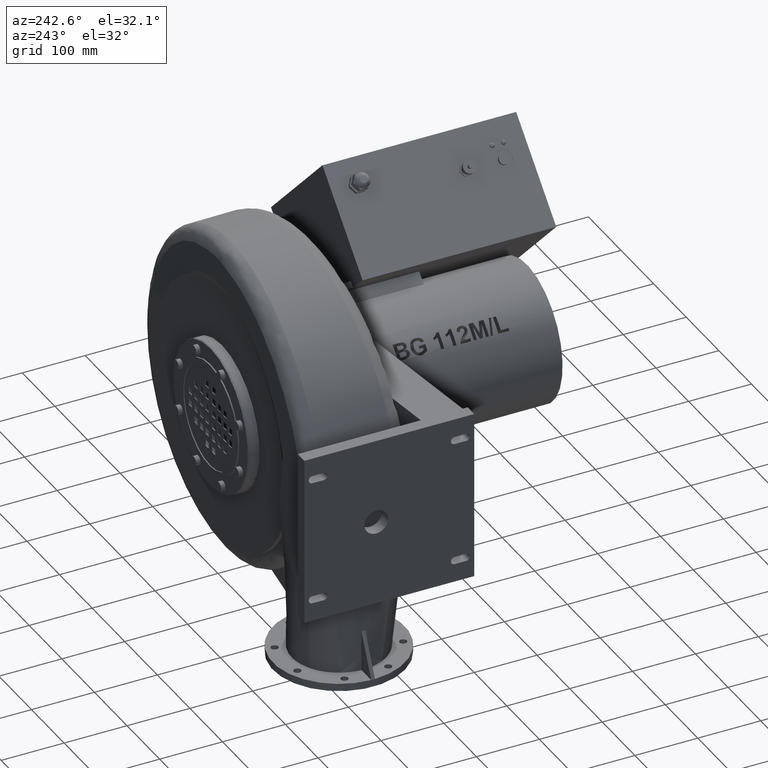
[diagram: clean part render]
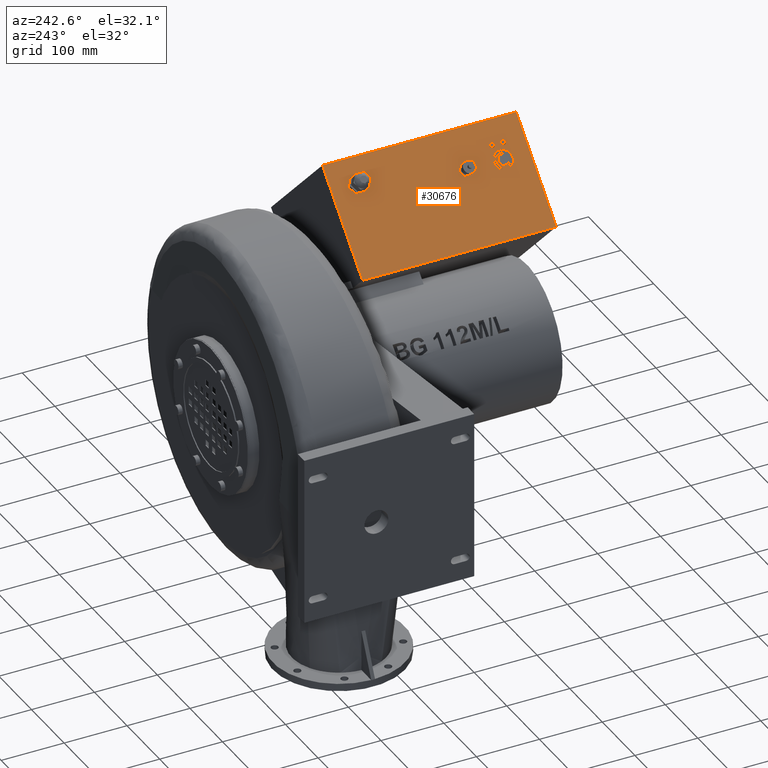
[diagram: same view with one face highlighted and labeled with its STEP entity id]
A machine part, auxiliary view. The second image highlights one B-rep face of the part: STEP entity #30676.
In plain terms, the highlighted planar face has unit normal (-0.7071, -0, 0.7071).
Its self-contained STEP definition (entity closure, byte-faithful):
#21760=CARTESIAN_POINT('',(355.35355339060112,-314.69999999999993,23.038365595199146));
#21761=VERTEX_POINT('',#21760);
#21768=CARTESIAN_POINT('',(355.35355339060061,-6.69999999999993,23.03836559519878));
#21769=VERTEX_POINT('',#21768);
#21770=CARTESIAN_POINT('',(355.35355339060061,-6.69999999999993,23.03836559519878));
#21771=DIRECTION('',(0.0,-1.0,0.0));
#21772=VECTOR('',#21771,308.0);
#21773=LINE('',#21770,#21772);
#21774=EDGE_CURVE('',#21769,#21761,#21773,.T.);
#21823=CARTESIAN_POINT('',(478.39013331706064,-6.699999999999563,146.07494552165741));
#21824=VERTEX_POINT('',#21823);
#21825=CARTESIAN_POINT('',(478.39013331706064,-6.699999999999563,146.07494552165741));
#21826=DIRECTION('',(-0.707106781186551,-2.118357E-015,-0.707106781186544));
#21827=VECTOR('',#21826,174.00000000000003);
#21828=LINE('',#21825,#21827);
#21829=EDGE_CURVE('',#21824,#21769,#21828,.T.);
#27625=CARTESIAN_POINT('',(478.3901333170611,-314.69999999999959,146.07494552165781));
#27626=VERTEX_POINT('',#27625);
#27627=CARTESIAN_POINT('',(478.39013331706064,-6.699999999999563,146.07494552165741));
#27628=DIRECTION('',(0.0,-1.0,0.0));
#27629=VECTOR('',#27628,308.0);
#27630=LINE('',#27627,#27629);
#27631=EDGE_CURVE('',#21824,#27626,#27630,.T.);
#27924=CARTESIAN_POINT('',(441.26702730476711,-216.60747728811145,108.95183950936416));
#27925=VERTEX_POINT('',#27924);
#27932=CARTESIAN_POINT('',(441.26702730476694,-206.79252271188776,108.95183950936412));
#27933=VERTEX_POINT('',#27932);
#27934=CARTESIAN_POINT('',(441.26702730476694,-206.79252271188778,108.95183950936411));
#27935=DIRECTION('',(0.0,-1.0,0.0));
#27936=VECTOR('',#27935,9.814954576223698);
#27937=LINE('',#27934,#27936);
#27938=EDGE_CURVE('',#27933,#27925,#27937,.T.);
#27955=CARTESIAN_POINT('',(435.2566196646813,-221.51495457622335,102.94143186927852));
#27956=VERTEX_POINT('',#27955);
#27963=CARTESIAN_POINT('',(441.267027304767,-216.60747728811157,108.95183950936421));
#27964=DIRECTION('',(-0.612372435695797,-0.500000000000003,-0.61237243569579));
#27965=VECTOR('',#27964,9.814954576223677);
#27966=LINE('',#27963,#27965);
#27967=EDGE_CURVE('',#27925,#27956,#27966,.T.);
#27979=CARTESIAN_POINT('',(429.24621202459554,-216.60747728811157,96.931024229192815));
#27980=VERTEX_POINT('',#27979);
#27987=CARTESIAN_POINT('',(435.25661966468135,-221.51495457622337,102.9414318692785));
#27988=DIRECTION('',(-0.612372435695797,0.499999999999997,-0.612372435695794));
#27989=VECTOR('',#27988,9.814954576223673);
#27990=LINE('',#27987,#27989);
#27991=EDGE_CURVE('',#27956,#27980,#27990,.T.);
#28003=CARTESIAN_POINT('',(429.24621202459554,-206.79252271188787,96.931024229192801));
#28004=VERTEX_POINT('',#28003);
#28011=CARTESIAN_POINT('',(429.24621202459554,-216.60747728811154,96.931024229192801));
#28012=DIRECTION('',(0.0,1.0,0.0));
#28013=VECTOR('',#28012,9.814954576223698);
#28014=LINE('',#28011,#28013);
#28015=EDGE_CURVE('',#27980,#28004,#28014,.T.);
#28027=CARTESIAN_POINT('',(435.2566196646813,-201.88504542377601,102.94143186927847));
#28028=VERTEX_POINT('',#28027);
#28035=CARTESIAN_POINT('',(429.24621202459548,-206.79252271188787,96.931024229192786));
#28036=DIRECTION('',(0.612372435695797,0.5,0.612372435695793));
#28037=VECTOR('',#28036,9.814954576223679);
#28038=LINE('',#28035,#28037);
#28039=EDGE_CURVE('',#28004,#28028,#28038,.T.);
#28052=CARTESIAN_POINT('',(435.2566196646813,-201.88504542377603,102.94143186927847));
#28053=DIRECTION('',(0.612372435695799,-0.499999999999995,0.612372435695794));
#28054=VECTOR('',#28053,9.81495457622365);
#28055=LINE('',#28052,#28054);
#28056=EDGE_CURVE('',#28028,#27933,#28055,.T.);
#29418=CARTESIAN_POINT('',(455.05560953790484,-280.69999999999959,122.74042174250178));
#29419=VERTEX_POINT('',#29418);
#29420=CARTESIAN_POINT('',(452.22718241315863,-280.69999999999953,119.91199461775568));
#29421=DIRECTION('',(0.707106781186544,3.619033E-016,-0.707106781186551));
#29422=DIRECTION('',(-0.707106781186551,-2.120086E-015,-0.707106781186544));
#29423=AXIS2_PLACEMENT_3D('',#29420,#29421,#29422);
#29424=CIRCLE('',#29423,4.0);
#29425=EDGE_CURVE('',#29419,#29419,#29424,.T.);
#29539=CARTESIAN_POINT('',(455.05560953790479,-262.69999999999959,122.74042174250178));
#29540=VERTEX_POINT('',#29539);
#29541=CARTESIAN_POINT('',(452.22718241315852,-262.69999999999959,119.91199461775562));
#29542=DIRECTION('',(0.707106781186544,3.619033E-016,-0.707106781186551));
#29543=DIRECTION('',(-0.707106781186551,-2.120086E-015,-0.707106781186544));
#29544=AXIS2_PLACEMENT_3D('',#29541,#29542,#29543);
#29545=CIRCLE('',#29544,4.0);
#29546=EDGE_CURVE('',#29540,#29540,#29545,.T.);
#29576=CARTESIAN_POINT('',(428.78817294102214,-266.6999999999997,96.472985145619376));
#29577=VERTEX_POINT('',#29576);
#29584=CARTESIAN_POINT('',(428.78817294102214,-276.6999999999997,96.47298514561939));
#29585=VERTEX_POINT('',#29584);
#29586=CARTESIAN_POINT('',(435.11519830844406,-271.69999999999965,102.80001051304129));
#29587=DIRECTION('',(-0.707106781186544,-4.163336E-016,0.707106781186551));
#29588=DIRECTION('',(0.617270767553357,0.487804878048782,0.617270767553351));
#29589=AXIS2_PLACEMENT_3D('',#29586,#29587,#29588);
#29590=CIRCLE('',#29589,10.250000000000002);
#29591=EDGE_CURVE('',#29585,#29577,#29590,.T.);
#29616=CARTESIAN_POINT('',(425.50673047793305,-278.62222449073033,93.191542682530311));
#29617=VERTEX_POINT('',#29616);
#29618=CARTESIAN_POINT('',(425.50673047793299,-278.62222449073033,93.191542682530354));
#29619=DIRECTION('',(0.653281482438193,0.382683432365088,0.653281482438185));
#29620=VECTOR('',#29619,5.023014659534004);
#29621=LINE('',#29618,#29620);
#29622=EDGE_CURVE('',#29617,#29585,#29621,.T.);
#29648=CARTESIAN_POINT('',(425.50673047793293,-264.77777550926908,93.191542682530283));
#29649=VERTEX_POINT('',#29648);
#29650=CARTESIAN_POINT('',(435.11519830844406,-271.69999999999965,102.80001051304129));
#29651=DIRECTION('',(0.707106781186544,2.775558E-016,-0.707106781186551));
#29652=DIRECTION('',(-0.630063464295805,-0.453916360047912,-0.630063464295799));
#29653=AXIS2_PLACEMENT_3D('',#29650,#29651,#29652);
#29654=CIRCLE('',#29653,15.250000000000004);
#29655=EDGE_CURVE('',#29649,#29617,#29654,.T.);
#29678=CARTESIAN_POINT('',(428.78817294102214,-266.69999999999965,96.47298514561939));
#29679=DIRECTION('',(-0.653281482438192,0.382683432365088,-0.653281482438186));
#29680=VECTOR('',#29679,5.023014659534013);
#29681=LINE('',#29678,#29680);
#29682=EDGE_CURVE('',#29577,#29649,#29681,.T.);
#29716=CARTESIAN_POINT('',(440.77205255793643,-271.69999999999965,108.4568647625336));
#29717=VERTEX_POINT('',#29716);
#29718=CARTESIAN_POINT('',(435.11519830844406,-271.69999999999965,102.80001051304129));
#29719=DIRECTION('',(0.707106781186544,3.619033E-016,-0.707106781186551));
#29720=DIRECTION('',(-0.707106781186551,-2.120086E-015,-0.707106781186544));
#29721=AXIS2_PLACEMENT_3D('',#29718,#29719,#29720);
#29722=CIRCLE('',#29721,8.0);
#29723=EDGE_CURVE('',#29717,#29717,#29722,.T.);
#30360=CARTESIAN_POINT('',(441.62058069535999,-40.271796769724311,109.30539289995733));
#30361=VERTEX_POINT('',#30360);
#30368=CARTESIAN_POINT('',(441.6205806953601,-54.128203230275112,109.30539289995735));
#30369=VERTEX_POINT('',#30368);
#30370=CARTESIAN_POINT('',(441.62058069536005,-54.128203230275112,109.30539289995733));
#30371=DIRECTION('',(0.0,1.0,0.0));
#30372=VECTOR('',#30371,13.856406460550801);
#30373=LINE('',#30370,#30372);
#30374=EDGE_CURVE('',#30369,#30361,#30373,.T.);
#30398=CARTESIAN_POINT('',(450.10586206959852,-33.343593539449003,117.79067427419564));
#30399=VERTEX_POINT('',#30398);
#30406=CARTESIAN_POINT('',(441.62058069536005,-40.271796769724318,109.30539289995733));
#30407=DIRECTION('',(0.6123724356958,0.499999999999997,0.612372435695792));
#30408=VECTOR('',#30407,13.856406460550726);
#30409=LINE('',#30406,#30408);
#30410=EDGE_CURVE('',#30361,#30399,#30409,.T.);
#30429=CARTESIAN_POINT('',(458.59114344383698,-40.271796769724297,126.27595564843406));
#30430=VERTEX_POINT('',#30429);
#30437=CARTESIAN_POINT('',(450.10586206959857,-33.343593539449003,117.79067427419567));
#30438=DIRECTION('',(0.6123724356958,-0.499999999999995,0.612372435695793));
#30439=VECTOR('',#30438,13.856406460550737);
#30440=LINE('',#30437,#30439);
#30441=EDGE_CURVE('',#30399,#30430,#30440,.T.);
#30460=CARTESIAN_POINT('',(458.59114344383698,-54.128203230275027,126.27595564843405));
#30461=VERTEX_POINT('',#30460);
#30468=CARTESIAN_POINT('',(458.5911434438371,-40.271796769724304,126.27595564843408));
#30469=DIRECTION('',(0.0,-1.0,0.0));
#30470=VECTOR('',#30469,13.85640646055073);
#30471=LINE('',#30468,#30470);
#30472=EDGE_CURVE('',#30430,#30461,#30471,.T.);
#30491=CARTESIAN_POINT('',(450.10586206959857,-61.056406460550491,117.79067427419565));
#30492=VERTEX_POINT('',#30491);
#30499=CARTESIAN_POINT('',(458.59114344383698,-54.128203230275034,126.27595564843411));
#30500=DIRECTION('',(-0.612372435695796,-0.500000000000005,-0.612372435695789));
#30501=VECTOR('',#30500,13.856406460550813);
#30502=LINE('',#30499,#30501);
#30503=EDGE_CURVE('',#30461,#30492,#30502,.T.);
#30521=CARTESIAN_POINT('',(450.10586206959863,-61.056406460550505,117.79067427419568));
#30522=DIRECTION('',(-0.6123724356958,0.5,-0.612372435695789));
#30523=VECTOR('',#30522,13.856406460550737);
#30524=LINE('',#30521,#30523);
#30525=EDGE_CURVE('',#30492,#30369,#30524,.T.);
#30629=CARTESIAN_POINT('',(478.39013331706064,-6.699999999999563,146.07494552165741));
#30630=DIRECTION('',(-0.707106781186544,-3.619033E-016,0.707106781186551));
#30631=DIRECTION('',(0.707106781186551,2.120086E-015,0.707106781186544));
#30632=AXIS2_PLACEMENT_3D('',#30629,#30630,#30631);
#30633=PLANE('',#30632);
#30634=ORIENTED_EDGE('',*,*,#21774,.T.);
#30635=CARTESIAN_POINT('',(478.3901333170611,-314.69999999999959,146.07494552165781));
#30636=DIRECTION('',(-0.707106781186551,-1.960118E-015,-0.707106781186544));
#30637=VECTOR('',#30636,174.00000000000003);
#30638=LINE('',#30635,#30637);
#30639=EDGE_CURVE('',#27626,#21761,#30638,.T.);
#30640=ORIENTED_EDGE('',*,*,#30639,.F.);
#30641=ORIENTED_EDGE('',*,*,#27631,.F.);
#30642=ORIENTED_EDGE('',*,*,#21829,.T.);
#30643=EDGE_LOOP('',(#30634,#30640,#30641,#30642));
#30644=FACE_OUTER_BOUND('',#30643,.T.);
#30645=ORIENTED_EDGE('',*,*,#27938,.T.);
#30646=ORIENTED_EDGE('',*,*,#27967,.T.);
#30647=ORIENTED_EDGE('',*,*,#27991,.T.);
#30648=ORIENTED_EDGE('',*,*,#28015,.T.);
#30649=ORIENTED_EDGE('',*,*,#28039,.T.);
#30650=ORIENTED_EDGE('',*,*,#28056,.T.);
#30651=EDGE_LOOP('',(#30645,#30646,#30647,#30648,#30649,#30650));
#30652=FACE_BOUND('',#30651,.T.);
#30653=ORIENTED_EDGE('',*,*,#29425,.T.);
#30654=EDGE_LOOP('',(#30653));
#30655=FACE_BOUND('',#30654,.T.);
#30656=ORIENTED_EDGE('',*,*,#29546,.T.);
#30657=EDGE_LOOP('',(#30656));
#30658=FACE_BOUND('',#30657,.T.);
#30659=ORIENTED_EDGE('',*,*,#29591,.T.);
#30660=ORIENTED_EDGE('',*,*,#29682,.T.);
#30661=ORIENTED_EDGE('',*,*,#29655,.T.);
#30662=ORIENTED_EDGE('',*,*,#29622,.T.);
#30663=EDGE_LOOP('',(#30659,#30660,#30661,#30662));
#30664=FACE_BOUND('',#30663,.T.);
#30665=ORIENTED_EDGE('',*,*,#29723,.T.);
#30666=EDGE_LOOP('',(#30665));
#30667=FACE_BOUND('',#30666,.T.);
#30668=ORIENTED_EDGE('',*,*,#30374,.T.);
#30669=ORIENTED_EDGE('',*,*,#30410,.T.);
#30670=ORIENTED_EDGE('',*,*,#30441,.T.);
#30671=ORIENTED_EDGE('',*,*,#30472,.T.);
#30672=ORIENTED_EDGE('',*,*,#30503,.T.);
#30673=ORIENTED_EDGE('',*,*,#30525,.T.);
#30674=EDGE_LOOP('',(#30668,#30669,#30670,#30671,#30672,#30673));
#30675=FACE_BOUND('',#30674,.T.);
#30676=ADVANCED_FACE('',(#30644,#30652,#30655,#30658,#30664,#30667,#30675),#30633,.T.);